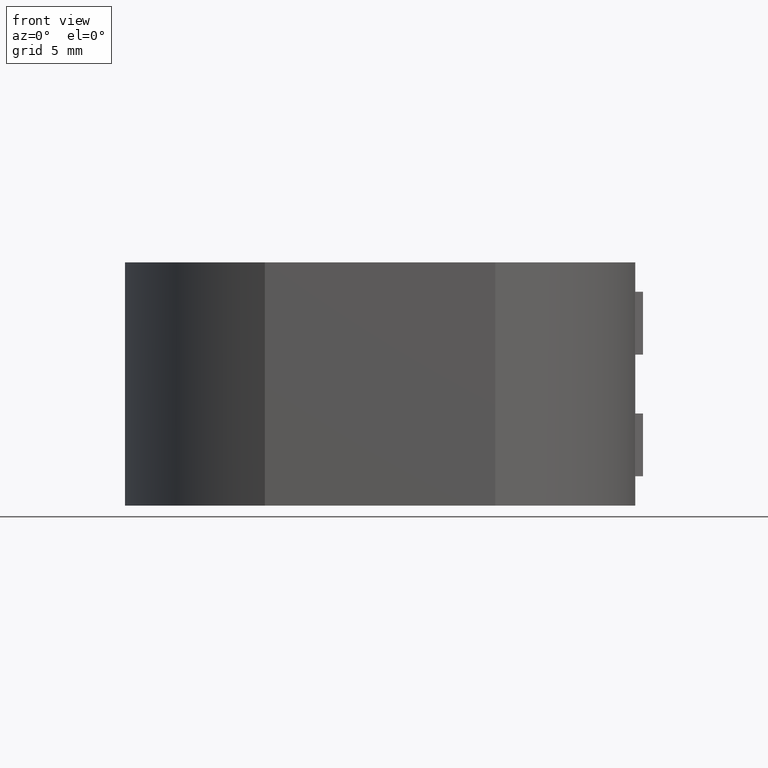
[diagram: clean part render]
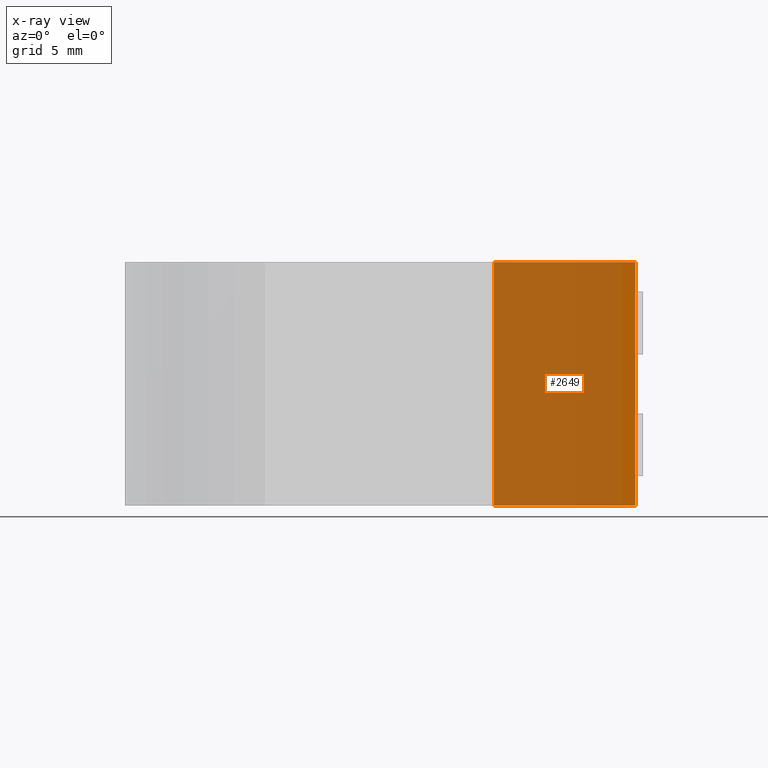
[diagram: x-ray — body ghosted, one internal face saturated and labeled with its STEP entity id]
A machine part, front view, then the same camera in x-ray: the body is ghosted and one INTERNAL B-rep face — a face not visible from any outside direction — is saturated and labeled: STEP entity #2649.
In plain terms, the highlighted planar face has unit normal (-0, 1, 0).
Its self-contained STEP definition (entity closure, byte-faithful):
#59 = AXIS2_PLACEMENT_3D ( 'NONE', #1012, #780, #2487 ) ;
#61 = VERTEX_POINT ( 'NONE', #1125 ) ;
#161 = DIRECTION ( 'NONE',  ( -1.000000000000000000, -1.224939954490834200E-016, 0.0000000000000000000 ) ) ;
#183 = DIRECTION ( 'NONE',  ( -0.0000000000000000000, -0.0000000000000000000, 1.000000000000000000 ) ) ;
#231 = VECTOR ( 'NONE', #1210, 1000.000000000000000 ) ;
#423 = CARTESIAN_POINT ( 'NONE',  ( 16.25000000000000000, 0.01000000000000000000, 7.750000000000000000 ) ) ;
#501 = LINE ( 'NONE', #1778, #2299 ) ;
#611 = LINE ( 'NONE', #423, #1619 ) ;
#670 = EDGE_CURVE ( 'NONE', #1999, #766, #2478, .T. ) ;
#766 = VERTEX_POINT ( 'NONE', #2729 ) ;
#780 = DIRECTION ( 'NONE',  ( -1.224939954490834200E-016, 1.000000000000000000, 0.0000000000000000000 ) ) ;
#879 = EDGE_CURVE ( 'NONE', #766, #3000, #611, .T. ) ;
#917 = CARTESIAN_POINT ( 'NONE',  ( 7.249993103444997400, 0.009999999999998898700, 7.750000000000000000 ) ) ;
#971 = ORIENTED_EDGE ( 'NONE', *, *, #879, .T. ) ;
#1012 = CARTESIAN_POINT ( 'NONE',  ( 16.25000000000000000, 0.01000000000000000000, -7.750000000000000000 ) ) ;
#1125 = CARTESIAN_POINT ( 'NONE',  ( 7.249993103444997400, 0.009999999999998898700, -7.750000000000000000 ) ) ;
#1167 = EDGE_CURVE ( 'NONE', #61, #3000, #501, .T. ) ;
#1168 = ORIENTED_EDGE ( 'NONE', *, *, #1181, .F. ) ;
#1181 = EDGE_CURVE ( 'NONE', #1999, #61, #1959, .T. ) ;
#1210 = DIRECTION ( 'NONE',  ( -0.0000000000000000000, -0.0000000000000000000, 1.000000000000000000 ) ) ;
#1331 = CARTESIAN_POINT ( 'NONE',  ( 16.25000000000000000, 0.01000000000000000000, -7.750000000000000000 ) ) ;
#1480 = FACE_OUTER_BOUND ( 'NONE', #1572, .T. ) ;
#1572 = EDGE_LOOP ( 'NONE', ( #1168, #2153, #971, #2762 ) ) ;
#1619 = VECTOR ( 'NONE', #161, 1000.000000000000000 ) ;
#1653 = CARTESIAN_POINT ( 'NONE',  ( 16.25000000000000000, 0.01000000000000000000, -7.750000000000000000 ) ) ;
#1730 = CARTESIAN_POINT ( 'NONE',  ( 16.25000000000000000, 0.01000000000000000000, -7.750000000000000000 ) ) ;
#1778 = CARTESIAN_POINT ( 'NONE',  ( 7.249993103444997400, 0.009999999999998898700, -7.750000000000000000 ) ) ;
#1959 = LINE ( 'NONE', #1331, #3018 ) ;
#1982 = PLANE ( 'NONE',  #59 ) ;
#1999 = VERTEX_POINT ( 'NONE', #1653 ) ;
#2102 = DIRECTION ( 'NONE',  ( -1.000000000000000000, -1.224939954490834200E-016, 0.0000000000000000000 ) ) ;
#2153 = ORIENTED_EDGE ( 'NONE', *, *, #670, .T. ) ;
#2299 = VECTOR ( 'NONE', #183, 1000.000000000000000 ) ;
#2478 = LINE ( 'NONE', #1730, #231 ) ;
#2487 = DIRECTION ( 'NONE',  ( -1.000000000000000000, -1.224939954490834200E-016, 0.0000000000000000000 ) ) ;
#2649 = ADVANCED_FACE ( 'NONE', ( #1480 ), #1982, .F. ) ;
#2729 = CARTESIAN_POINT ( 'NONE',  ( 16.25000000000000000, 0.01000000000000000000, 7.750000000000000000 ) ) ;
#2762 = ORIENTED_EDGE ( 'NONE', *, *, #1167, .F. ) ;
#3000 = VERTEX_POINT ( 'NONE', #917 ) ;
#3018 = VECTOR ( 'NONE', #2102, 1000.000000000000000 ) ;